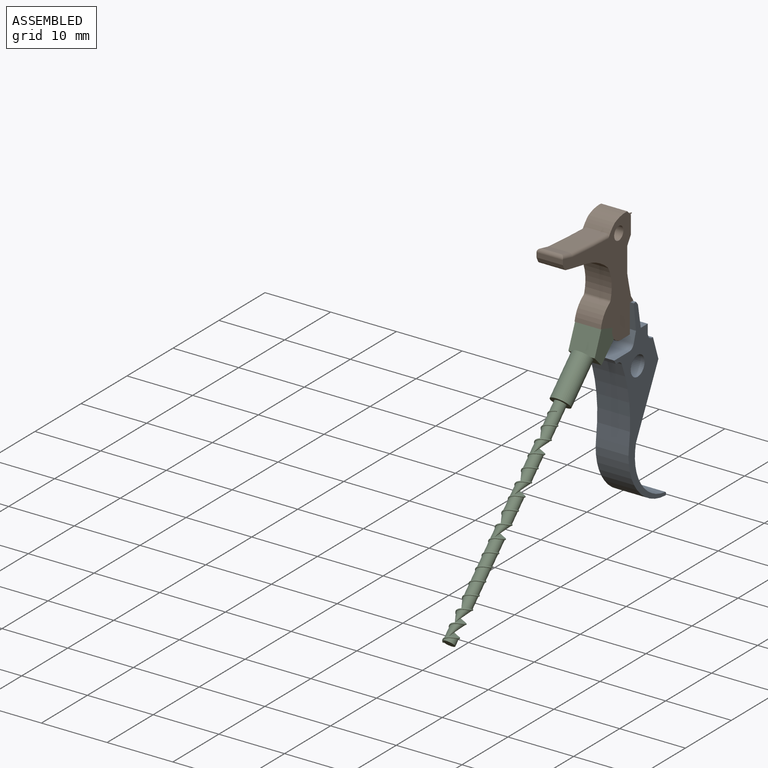
[diagram: assembled view]
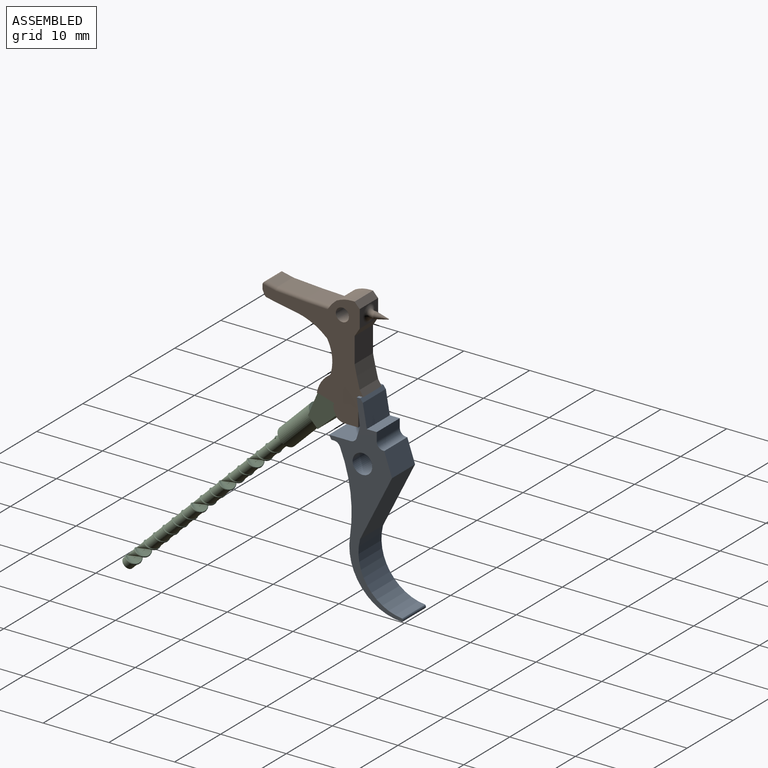
[diagram: assembled view, second angle]
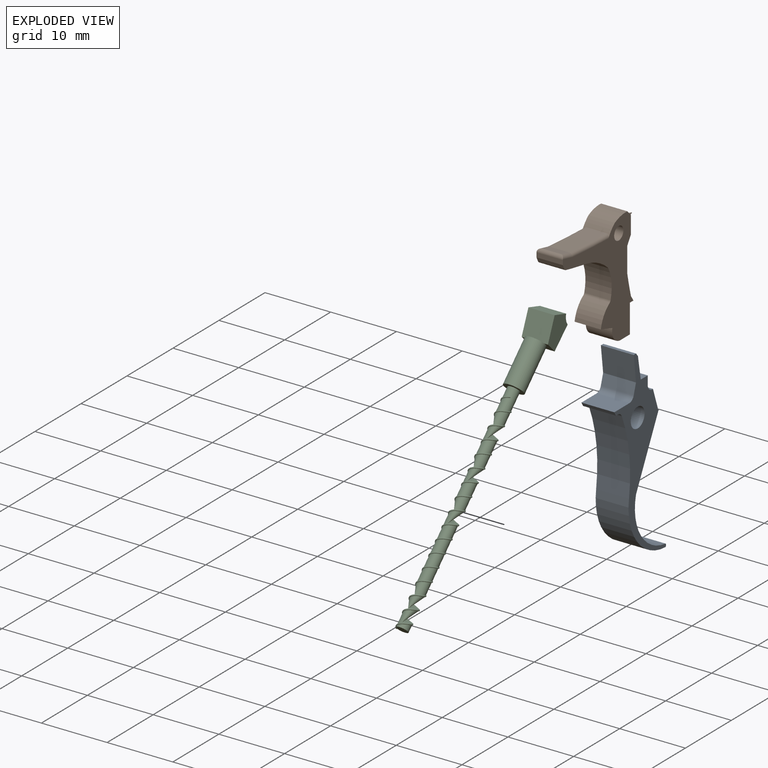
[diagram: exploded view]
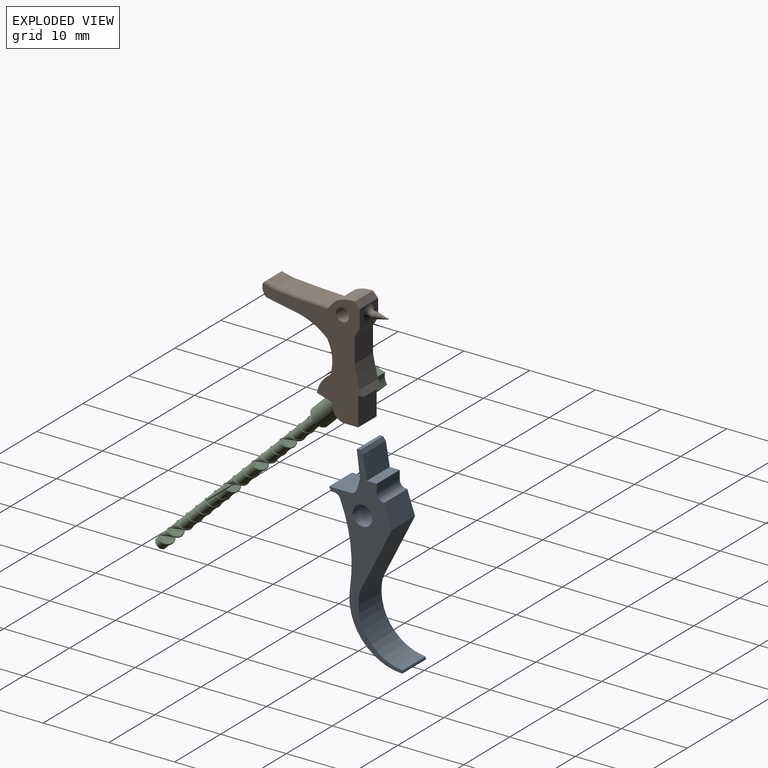
[diagram: exploded view, second angle]
ASSEMBLY  parts=3 mates=2
PART A: 23 faces, bbox 5x11.3x29.1 mm
  f0: plane 5x1.52mm, normal (0,0,1), area 7.6mm2, adj f1,f20,f21,f22
  f1: plane 5x3.45mm, normal (0,0.98,0.17), area 17.5mm2, adj f0,f2,f21,f22
  f2: plane 5x0.52mm, normal (0,0.79,0.61), area 3.3mm2, adj f1,f3,f21,f22
  f3: plane 5x0.52mm, normal (0,0,1), area 2.6mm2, adj f2,f4,f21,f22
  f4: plane 5x3.97mm, normal (0,-0.99,-0.12), area 20mm2, adj f3,f5,f21,f22
  f5: plane 5x1.6mm, normal (0,-0.95,0.3), area 8.4mm2, adj f4,f6,f21,f22
  f6: cylinder r=1mm len=5mm, axis (-1,0,0), area 6.3mm2, adj f5,f7,f21,f22
  f7: plane 5x3.27mm, normal (0,0,1), area 16.3mm2, adj f6,f8,f21,f22
  f8: plane 5x0.6mm, normal (0,-0.86,-0.52), area 3.5mm2, adj f7,f9,f21,f22
  f9: plane 5x0.39mm, normal (0,0,-1), area 1.9mm2, adj f8,f10,f21,f22
  f10: cylinder r=1mm len=5mm, axis (-1,0,0), area 5.8mm2, adj f9,f11,f21,f22
  f11: cylinder r=21.83mm len=11.92mm, axis (-1,0,0), area 60.9mm2, adj f10,f12,f21,f22
  f12: cylinder r=8.36mm len=9.67mm, axis (-1,0,0), area 70.6mm2, adj f11,f13,f21,f22
  f13: cylinder r=0.29mm len=5mm, axis (-1,0,0), area 2.8mm2, adj f12,f14,f21,f22
  f14: cylinder r=7.36mm len=9.19mm, axis (-1,0,0), area 63.7mm2, adj f13,f15,f21,f22
  f15: plane 9.7x5mm, normal (0,0.89,-0.45), area 54.3mm2, adj f14,f16,f21,f22
  f16: plane 5x3.42mm, normal (0,0.95,0.33), area 18.1mm2, adj f15,f17,f21,f22
  f17: plane 5x0.14mm, normal (0,0,1), area 0.7mm2, adj f16,f18,f21,f22
  f18: cylinder r=1mm len=5mm, axis (-1,0,0), area 7.9mm2, adj f17,f20,f21,f22
  f19: cylinder r=1.5mm len=5mm, axis (-1,0,0), area 47.1mm2, adj f21,f22
  f20: plane 5x1.3mm, normal (0,1,0), area 6.5mm2, adj f0,f18,f21,f22
  f21: plane 29.06x11.26mm, normal (1,0,0), area 80.3mm2, adj f0,f1,f2,f3,f4,f5,f6,f7
  f22: plane 29.06x11.26mm, normal (-1,0,0), area 80.3mm2, adj f0,f1,f2,f3,f4,f5,f6,f7
PART B: 50 faces, bbox 4x17.8x17.2 mm
  f0: plane 4x0.77mm, normal (0,0,-1), area 3.1mm2, adj f1,f23,f25,f26
  f1: plane 4x0.85mm, normal (0,0.84,0.54), area 4.1mm2, adj f0,f2,f25,f26
  f2: plane 4x1.78mm, normal (0,0.97,0.24), area 7.3mm2, adj f1,f3,f25,f26
  f3: plane 4x1.55mm, normal (0,0.98,0.21), area 6.4mm2, adj f2,f4,f25,f26
  f4: plane 4x3.87mm, normal (0,1,0), area 15.5mm2, adj f3,f5,f25,f26
  f5: plane 4x1.21mm, normal (0,0.84,-0.54), area 5.8mm2, adj f4,f6,f25,f26
  f6: plane 4x2.7mm, normal (0,1,0), area 5.5mm2, adj f5,f7,f25,f26,f30
  f7: plane 4x0.82mm, normal (0,0.73,0.69), area 4.5mm2, adj f6,f8,f25,f26
  f8: plane 4x0.4mm, normal (0,0,1), area 1.6mm2, adj f7,f25,f26,f49
  f9: plane 4x0.61mm, normal (0,-0.81,0.59), area 0.7mm2, adj f10,f25,f26,f37,f43,f48
  f10: plane 3.65x3mm, normal (0,0.04,1), area 11mm2, adj f9,f37,f41,f43
  f11: plane 4.42x3mm, normal (0,0.07,1), area 13.3mm2, adj f35,f36,f40,f41
  f12: plane 3x1.57mm, normal (0,0.22,0.98), area 4.8mm2, adj f31,f32,f34,f35
  f13: plane 4x0.68mm, normal (0,-1,0), area 2.7mm2, adj f14,f25,f26,f32
  f14: plane 4x0.65mm, normal (0,-0.9,-0.43), area 2.9mm2, adj f13,f25,f26,f44
  f15: plane 4x1.43mm, normal (0,-0.2,-0.98), area 5.8mm2, adj f25,f26,f44,f45
  f16: plane 4x3.05mm, normal (0,-0.18,-0.98), area 12.4mm2, adj f17,f25,f26,f45
  f17: cylinder r=9.32mm len=4.64mm, axis (-1,0,0), area 21mm2, adj f16,f25,f26,f46
  f18: cylinder r=6.03mm len=4.62mm, axis (-1,0,0), area 19.1mm2, adj f25,f26,f46,f47
  f19: cylinder r=4.41mm len=4mm, axis (-1,0,0), area 14.3mm2, adj f20,f25,f26,f47
  f20: plane 4x2.5mm, normal (0,-0.29,-0.96), area 10.5mm2, adj f19,f21,f25,f26
  f21: cylinder r=1.86mm len=4mm, axis (-1,0,0), area 13.6mm2, adj f20,f22,f25,f26
  f22: plane 4x2mm, normal (0,0,-1), area 8mm2, adj f21,f23,f25,f26
  f23: plane 4.37x4mm, normal (0,1,0), area 17.5mm2, adj f0,f22,f25,f26
  f24: cylinder r=1mm len=4mm, axis (-1,0,0), area 25.1mm2, adj f25,f26
  f25: plane 17.16x15.34mm, normal (1,0,0), area 91.4mm2, adj f0,f1,f2,f3,f4,f5,f6,f7
  f26: plane 17.16x15.34mm, normal (-1,0,0), area 91.4mm2, adj f0,f1,f2,f3,f4,f5,f6,f7
  f27: cylinder r=0.5mm len=1mm, axis (0,-1,0), area 0.6mm2, adj f29,f30
  f28: plane 0.1x0.1mm, normal (0,1,0), area 0mm2, adj f29
  f29: cone r=0.05mm half-angle=12.7deg, axis (0,-1,0), area 3.5mm2, adj f27,f28
  f30: torus R=1.3mm, axis (0,-1,0), area 6.2mm2, adj f6,f27
  f31: cylinder r=0.5mm len=2.05mm, axis (0,-0.98,0.22), area 1.4mm2, adj f12,f26,f32,f33
  f32: cylinder r=0.5mm len=4mm, axis (-1,0,0), area 2.9mm2, adj f12,f13,f25,f26,f31,f34
  f33: torus R=1mm, axis (1,0,0), area 0.1mm2, adj f26,f31,f35,f36
  f34: cylinder r=0.5mm len=2.05mm, axis (0,0.98,-0.22), area 1.4mm2, adj f12,f25,f32,f38
  f35: cylinder r=0.5mm len=3mm, axis (1,0,0), area 0.2mm2, adj f11,f12,f33,f38
  f36: cylinder r=0.5mm len=4.45mm, axis (0,-1,0.07), area 3.5mm2, adj f11,f26,f33,f39
  f37: cylinder r=0.5mm len=3.67mm, axis (0,-1,0.04), area 2.8mm2, adj f9,f10,f26,f39
  f38: torus R=1mm, axis (1,0,0), area 0.1mm2, adj f25,f34,f35,f40
  f39: torus R=1mm, axis (1,0,0), area 0mm2, adj f26,f36,f37,f41
  f40: cylinder r=0.5mm len=4.45mm, axis (0,1,-0.07), area 3.5mm2, adj f11,f25,f38,f42
  f41: cylinder r=0.5mm len=3mm, axis (-1,0,0), area 0mm2, adj f10,f11,f39,f42
  f42: torus R=1mm, axis (1,0,0), area 0mm2, adj f25,f40,f41,f43
  f43: cylinder r=0.5mm len=3.67mm, axis (0,1,-0.04), area 2.8mm2, adj f9,f10,f25,f42
  f44: cylinder r=0.5mm len=4mm, axis (-1,0,0), area 1.8mm2, adj f14,f15,f25,f26
  f45: cylinder r=0.5mm len=4mm, axis (-1,0,0), area 0.1mm2, adj f15,f16,f25,f26
  f46: cylinder r=0.5mm len=4mm, axis (1,0,0), area 0.7mm2, adj f17,f18,f25,f26
  f47: cylinder r=0.5mm len=4mm, axis (-1,0,0), area 1.4mm2, adj f18,f19,f25,f26
  f48: cylinder r=5mm len=4mm, axis (-1,0,0), area 5.7mm2, adj f9,f25,f26,f49
  f49: cylinder r=5mm len=4mm, axis (-1,0,0), area 9.6mm2, adj f8,f25,f26,f48
PART C: 34 faces, bbox 4.1x33.8x33 mm
  f0: cylinder r=0.86mm len=3.62mm, axis (0,0.71,0.7), area 12.8mm2, adj f1,f22,f23,f24
  f1: cylinder r=0.86mm len=3.89mm, axis (0,0.71,0.7), area 9.6mm2, adj f0,f2,f23
  f2: cylinder r=0.86mm len=3.89mm, axis (0,0.71,0.7), area 10.5mm2, adj f1,f3,f23
  f3: cylinder r=0.86mm len=3.89mm, axis (0,0.71,0.7), area 9.6mm2, adj f2,f4,f23
  f4: cylinder r=0.86mm len=3.89mm, axis (0,0.71,0.7), area 9.6mm2, adj f3,f5,f23
  f5: cylinder r=0.86mm len=3.89mm, axis (0,0.71,0.7), area 20mm2, adj f4,f6,f23
  f6: cylinder r=0.86mm len=3.89mm, axis (0,0.71,0.7), area 9.6mm2, adj f5,f7,f23
  f7: cylinder r=0.86mm len=3.89mm, axis (0,0.71,0.7), area 9.6mm2, adj f6,f8,f23
  f8: cylinder r=0.86mm len=3.89mm, axis (0,0.71,0.7), area 10.5mm2, adj f7,f9,f23
  f9: cylinder r=0.86mm len=3.89mm, axis (0,0.71,0.7), area 9.6mm2, adj f8,f10,f23
  f10: cylinder r=0.86mm len=3.89mm, axis (0,0.71,0.7), area 9.6mm2, adj f9,f11,f23
  f11: cylinder r=0.86mm len=3.89mm, axis (0,0.71,0.7), area 9.6mm2, adj f10,f12,f23
  f12: cylinder r=0.86mm len=3.89mm, axis (0,0.71,0.7), area 9.6mm2, adj f11,f13,f23
  f13: cylinder r=0.86mm len=3.89mm, axis (0,0.71,0.7), area 9.6mm2, adj f12,f14,f23
  f14: cylinder r=0.86mm len=3.89mm, axis (0,0.71,0.7), area 25.8mm2, adj f13,f15,f23
  f15: cylinder r=0.86mm len=3.89mm, axis (0,0.71,0.7), area 20mm2, adj f14,f16,f23
  f16: cylinder r=0.86mm len=2.91mm, axis (0,0.71,0.7), area 7mm2, adj f15,f17,f18,f19,f23
  f17: cylinder r=0.86mm len=0.8mm, axis (0,0.71,0.7), area 0.2mm2, adj f16,f19,f23
  f18: plane 0.28x0.21mm, normal (0,0.7,-0.71), area 0mm2, adj f16,f19,f23
  f19: plane 1.8x1.31mm, normal (0,-0.71,-0.7), area 2.3mm2, adj f16,f17,f18,f20,f23
  f20: cylinder r=0.01mm len=24.25mm, axis (0,0.71,0.7), area 2.1mm2, adj f19,f21
  f21: plane 0.02x0.01mm, normal (0,-0.71,-0.7), area 0mm2, adj f20
  f22: plane 0.26x0.25mm, normal (0.81,0.41,-0.42), area 0mm2, adj f0,f23
  f23: bspline ~23.62x23.17mm, area 35.9mm2, adj f0,f1,f2,f3,f4,f5,f6,f7
  f24: plane 2.98x2.12mm, normal (0,-0.71,-0.7), area 4.7mm2, adj f0,f25
  f25: cylinder r=1.49mm len=6.87mm, axis (0,0.71,0.7), area 62.8mm2, adj f24,f26,f33
  f26: plane 2.92x0.85mm, normal (0,0.71,0.7), area 2.6mm2, adj f25,f27
  f27: plane 4x3.5mm, normal (0,-0.92,0.39), area 15.2mm2, adj f26,f28,f31,f32,f33
  f28: plane 4x2.5mm, normal (0,0.29,0.96), area 10.5mm2, adj f27,f29,f31,f32
  f29: cylinder r=1.75mm len=4mm, axis (-1,0,0), area 6.8mm2, adj f28,f30,f31,f32
  f30: plane 4x2.83mm, normal (0,0.68,-0.73), area 15.4mm2, adj f29,f31,f32,f33
  f31: plane 4.99x4.29mm, normal (1,0,0), area 12.4mm2, adj f27,f28,f29,f30,f33
  f32: plane 4.99x4.29mm, normal (-1,0,0), area 12.4mm2, adj f27,f28,f29,f30,f33
  f33: plane 4x1.49mm, normal (0,-0.71,-0.7), area 4mm2, adj f25,f27,f30,f31,f32
PLACE A t=(-37.4,5.54,5.49)mm
PLACE B t=(-36.9,-20.94,-23.29)mm
PLACE C t=(-34.9,-24.68,-9.25)mm
MATE fastened C.f29 <-> B.f21  axis (-1,0,0) through (-36.9,2.92,22.38)mm
MATE fastened A.f3 <-> B.f0  axis (0,0,1) through (-34.9,5.31,24.88)mm
